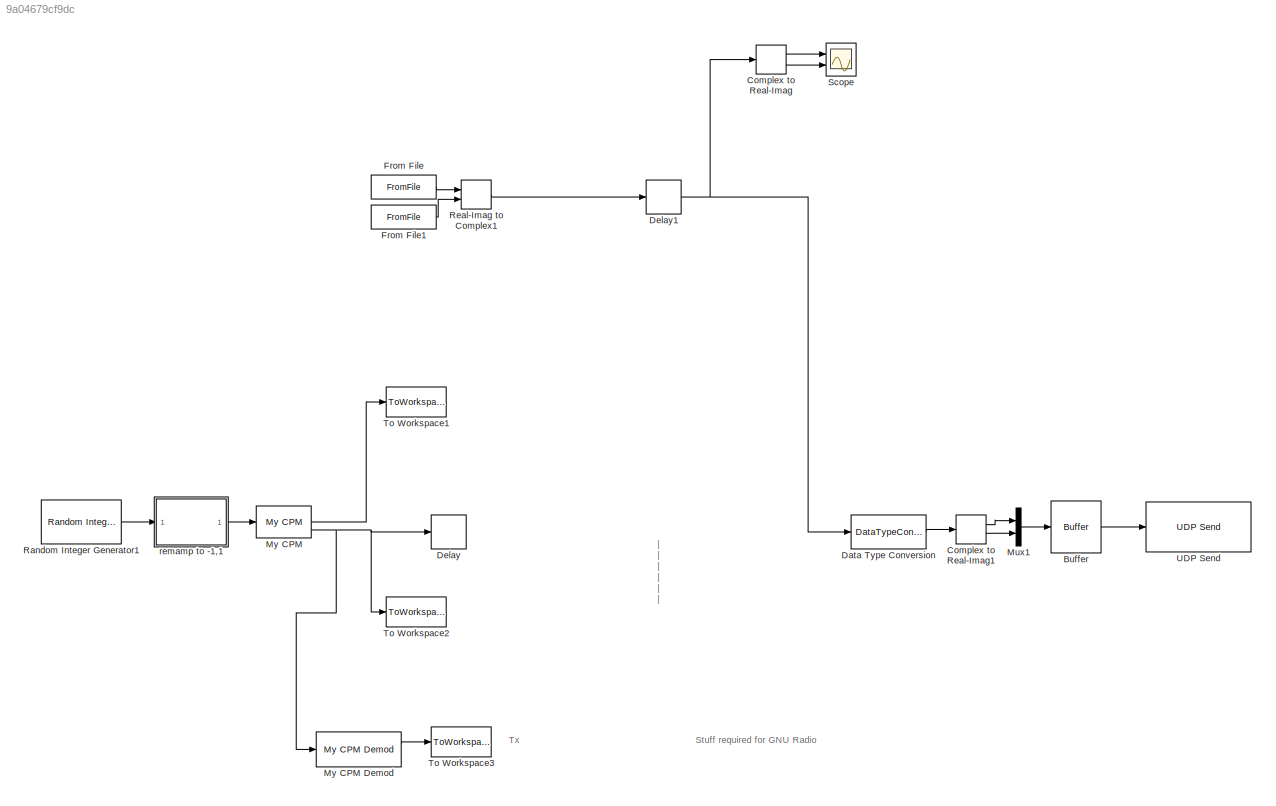
MODEL slx_9a04679cf9dc
KIND model
BLOCK [Buffer] Buffer
  N = 180
  TreatMby1Signals = One channel
BLOCK [ComplexToRealImag] Complex to Real-Imag
  Commented = on
  Ports = [1, 2]
BLOCK [ComplexToRealImag] Complex to Real-Imag1
  Ports = [1, 2]
BLOCK [DataTypeConversion] Data Type Conversion
  OutDataTypeStr = single
  RndMeth = Floor
  SaturateOnIntegerOverflow = off
BLOCK [Delay] Delay
  Commented = on
  DelayLength = 50000
  InitialCondition = 0
  InputPortMap = u0
  Ports = [1, 1]
BLOCK [Delay] Delay1
  DelayLength = 50000
  InitialCondition = 0
  InputPortMap = u0
  Ports = [1, 1]
BLOCK [FromFile] From File
  ExtrapolationAfterLastDataPoint = Ground value
  FileName = _udpTxReal.mat
  SampleTime = 1/125000
BLOCK [FromFile] From File1
  ExtrapolationAfterLastDataPoint = Ground value
  FileName = _udpTxImag.mat
  SampleTime = 1/125000
BLOCK [Mux] Mux1
  DisplayOption = bar
  Inputs = 2
  Ports = [2, 1]
BLOCK [Reference] My CPM  REF=siglabs_lib/My CPM
  ClockUpDownFrequency = 100
  Commented = on
  FilterBufferLength = 3
  PatternVectorDialog = [1 1 0 2 1 0 2 2 1 0 0 1 1 1 0 2 2 0 2 2]
  PatternVectorRepeatDialog = 1
  Ports = [1, 3]
  RotationsPerSym = 1
  SampsPerSym = 100
  SourceBlock = siglabs_lib/My CPM
BLOCK [Reference] My CPM Demod  REF=siglabs_lib/My CPM Demod
  Commented = on
  PatternVectorDialog = [2 0 1 2 0 1 0 1 0 2 2 2 1 0 2 2 1 0 0 1 2 0 1 1 2 1 0 2 0 1 2 2 2 1 1 2 0 2 2 1 2 1 1 0 1 0 1 0 1 1 1 0 1 0 2 2 0 0 2 2]
  PatternVectorRepeatDialog = 1
  Ports = [1, 2]
  RotationsPerSym = 1
  SampsPerSym = 50
  SourceBlock = siglabs_lib/My CPM Demod
BLOCK [Reference] Random Integer Generator1  REF=commrandsrc2/Random Integer
Generator
  Commented = on
  Ports = [0, 1]
  SourceBlock = commrandsrc2/Random Integer\nGenerator
  SourceType = Random Integer Generator
  Ts = 1/(1250)
  frameBased = off
  mul = 2
  orient = off
  outDataType = double
  sampPerFrame = 1024
  seed = 42
BLOCK [RealImagToComplex] Real-Imag to Complex1
  Ports = [2, 1]
BLOCK [Scope] Scope
  Commented = on
  Floating = off
  NumInputPorts = 2
  Ports = [2]
  ShowLegends = off
  YMax = 5~5
  YMin = -5~-5
BLOCK [ToWorkspace] To Workspace1
  Commented = on
  FixptAsFi = on
  MaxDataPoints = inf
  Ports = [1]
  SampleTime = -1
  Save2DSignal = 2-D array (concatenate along first dimension)
  VariableName = clock_comb125k
BLOCK [ToWorkspace] To Workspace2
  Commented = on
  FixptAsFi = on
  MaxDataPoints = inf
  Ports = [1]
  SampleTime = -1
  Save2DSignal = 2-D array (concatenate along first dimension)
  VariableName = idealdata
BLOCK [ToWorkspace] To Workspace3
  Commented = on
  FixptAsFi = on
  MaxDataPoints = inf
  Ports = [1]
  SampleTime = -1
  Save2DSignal = 2-D array (concatenate along first dimension)
  VariableName = txbits
BLOCK [Reference] UDP Send  REF=dspnetwork/UDP Send
  Ports = [1]
  SourceBlock = dspnetwork/UDP Send
  SourceType = UDP Send
  localPort = -1
  localPortSource = Automatically determine
  localURL = '0.0.0.0'
  remotePort = 1234
  remoteURL = '192.168.1.24'
  sampletime = -1
  separateLengthPort = 0
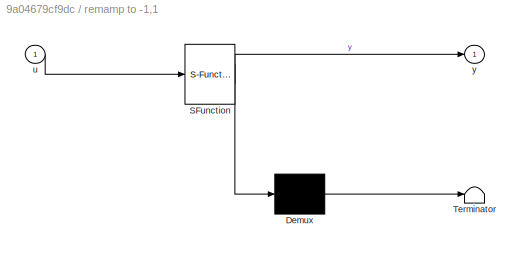
BLOCK [SubSystem] remamp to -1,1
  Commented = on
  ErrorFcn = Stateflow.Translate.translate
  PermitHierarchicalResolution = ExplicitOnly
  Ports = [1, 1]
  RequestExecContextInheritance = off
  SFBlockType = MATLAB Function
  TreatAsAtomicUnit = on
BLOCK [Demux] remamp to -1,1/ Demux 
  Outputs = 1
  Ports = [1, 1]
BLOCK [S-Function] remamp to -1,1/ SFunction 
  EnableBusSupport = on
  FunctionName = sf_sfun
  PortCounts = [1 2]
  Ports = [1, 2]
  Tag = Stateflow S-Function udp_send 2
BLOCK [Terminator] remamp to -1,1/ Terminator 
BLOCK [Inport] remamp to -1,1/u
  IconDisplay = Port number
BLOCK [Outport] remamp to -1,1/y
  IconDisplay = Port number
ANNOTATION (root): Stuff required for GNU Radio
ANNOTATION (root): Tx
ANNOTATION (root): | | | | | | | | | | | | | | | | | | | | |
LINE Buffer:1 -> UDP Send:1
LINE Complex to Real-Imag1:1 -> Mux1:1
LINE Complex to Real-Imag1:2 -> Mux1:2
LINE Complex to Real-Imag:1 -> Scope:1
LINE Complex to Real-Imag:2 -> Scope:2
LINE Data Type Conversion:1 -> Complex to Real-Imag1:1
NET Delay1:1 -> Complex to Real-Imag:1, Data Type Conversion:1
LINE From File1:1 -> Real-Imag to Complex1:2
LINE From File:1 -> Real-Imag to Complex1:1
LINE Mux1:1 -> Buffer:1
LINE My CPM Demod:1 -> To Workspace3:1
LINE My CPM:2 -> To Workspace1:1
NET My CPM:3 -> Delay:1, My CPM Demod:1, To Workspace2:1
LINE Random Integer Generator1:1 -> remamp to -1,1:1
LINE Real-Imag to Complex1:1 -> Delay1:1
LINE remamp to -1,1:1 -> My CPM:1
note: NET lines group one-source signal fan-out (src -> all destinations, sorted); 1:1 wires keep LINE
CHART remamp to -1,1 states=1 transitions=1
  STATE_LABEL 'eML_blk_kernel()'
  STATE_LABEL 'SCRIPT:\nfunction y = fcn(u)\n%#codegen\n\ny = (u*2)-1;'
